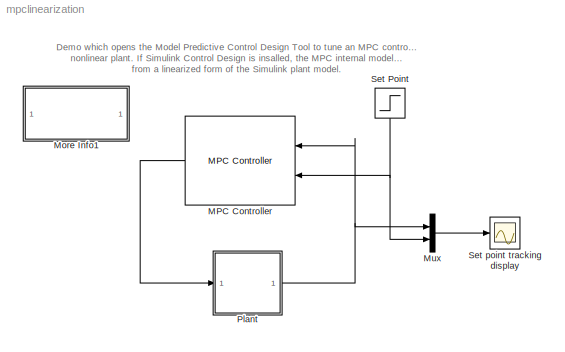
MODEL mpclinearization
KIND model
BLOCK [Reference] MPC Controller  REF=mpclib/MPC Controller  (lib defined in mdl_ae329e0e0455)
  Ports = [2, 1]
  ShowPortLabels = on
  SourceBlock = mpclib/MPC Controller
  SourceType = MPC
  from_project = off
  md_from_ws = off
  md_inport = off
  md_preview = on
  md_signal_name = []
  n_mv = 1
  project_file = MPCtask.mat
  ref_from_ws = off
  ref_preview = on
  ref_signal_name = []
  x0 = []
BLOCK [SubSystem] More Info1
  MaskDisplay = disp('Double click\\nhere to\\nStart')
  MaskIconFrame = on
  MaskIconOpaque = on
  MaskIconRotate = none
  MaskIconUnits = autoscale
  MinAlgLoopOccurrences = off
  OpenFcn = mpcdesign_callback('mpclinearization')
  Ports = []
  PropExecContextAcrossSSBoundary = on
  RTWSystemCode = Auto
  TreatAsAtomicUnit = off
BLOCK [Mux] Mux
  DisplayOption = bar
  Inputs = 2
  Ports = [2, 1]
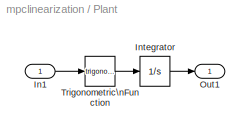
BLOCK [SubSystem] Plant
  MaskIconFrame = on
  MaskIconOpaque = on
  MaskIconRotate = none
  MaskIconUnits = autoscale
  MinAlgLoopOccurrences = off
  Ports = [1, 1]
  PropExecContextAcrossSSBoundary = on
  RTWSystemCode = Auto
  TreatAsAtomicUnit = off
BLOCK [Inport] Plant/In1
  IconDisplay = Port number
  LatchInput = off
BLOCK [Integrator] Plant/Integrator
  Ports = [1, 1]
BLOCK [Outport] Plant/Out1
  BusOutputAsStruct = off
  IconDisplay = Port number
BLOCK [Trigonometry] Plant/Trigonometric\nFunction
  Ports = [1, 1]
BLOCK [Step] Set Point
  SampleTime = 0
BLOCK [Scope] Set point tracking display
  DataFormat = StructureWithTime
  NumInputPorts = 1
  Ports = [1]
ANNOTATION (root): Demo which opens the Model Predictive Control Design Tool to tune an MPC controller for a \nnonlinear plant. If Simulink Control Design is insalled, the MPC internal model will be obtained\nfrom a linearized form of the Simulink plant model.
LINE MPC Controller:1 -> Plant:1
LINE Mux:1 -> Set point tracking display:1
LINE Plant/In1:1 -> Plant/Trigonometric\nFunction:1
LINE Plant/Integrator:1 -> Plant/Out1:1
LINE Plant/Trigonometric\nFunction:1 -> Plant/Integrator:1
NET Plant:1 -> MPC Controller:1, Mux:1
NET Set Point:1 -> MPC Controller:2, Mux:2
note: NET lines group one-source signal fan-out (src -> all destinations, sorted); 1:1 wires keep LINE
